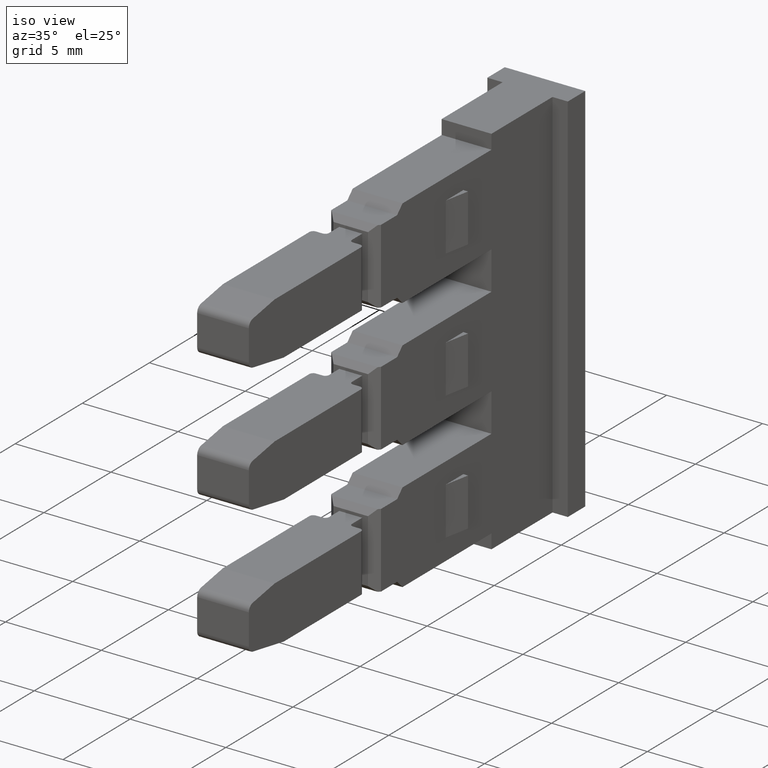
[diagram: clean part render]
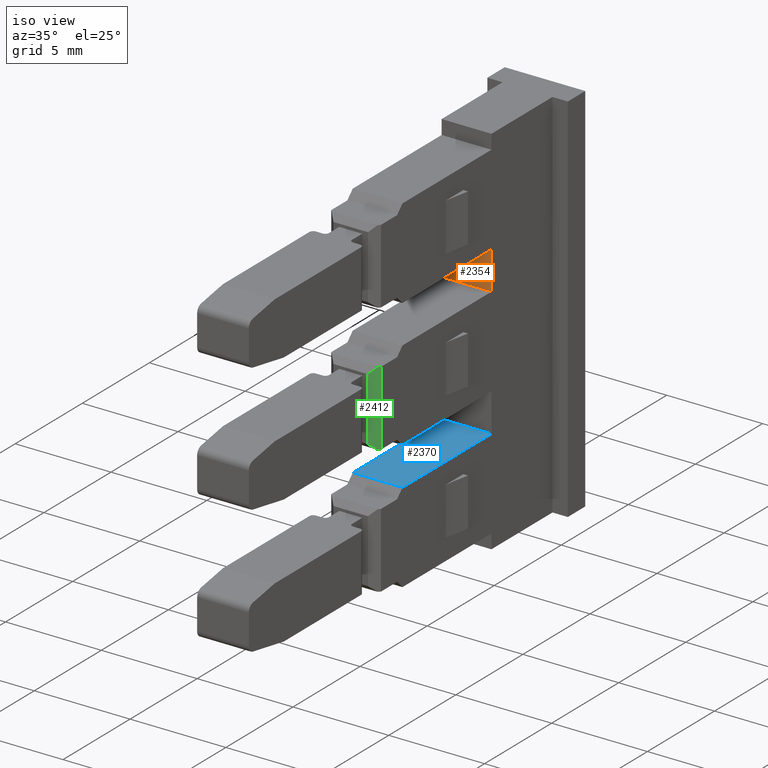
[diagram: same view with three faces highlighted in distinct colors, each labeled with its STEP entity id]
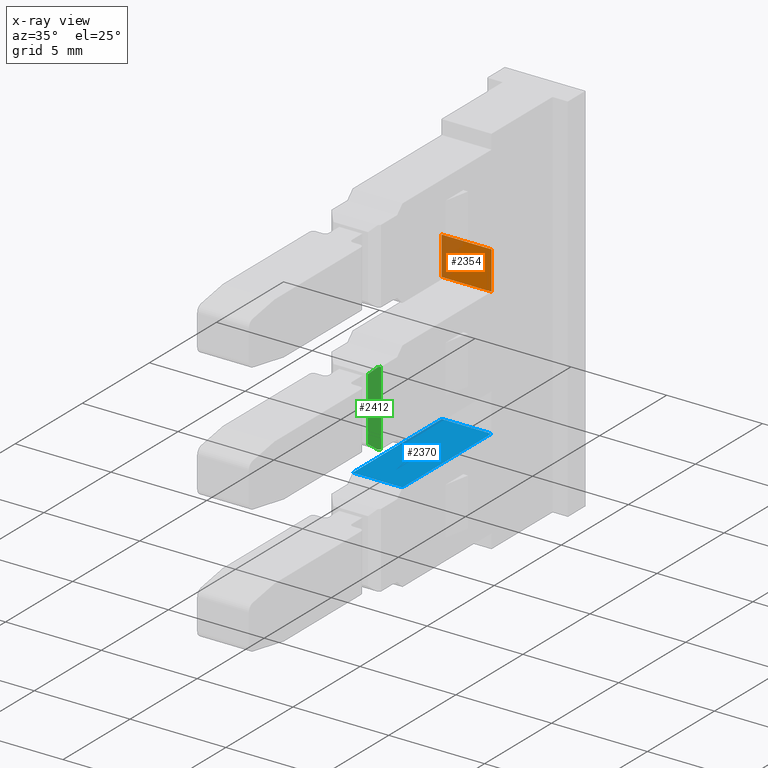
[diagram: x-ray of the same camera — body ghosted, the three highlighted faces saturated]
A machine part, iso view with three faces highlighted in distinct colors.
The next image is the same camera in x-ray (body ghosted, the three faces saturated) — at least one of them is partly hidden behind the body in this view.
Their STEP definitions:

[orange] entity #2354 — the highlighted planar face has unit normal (0, -1, 0).
#47 = EDGE_LOOP ( 'NONE', ( #399, #415, #431, #369, #362 ) ) ;
#362 = ORIENTED_EDGE ( 'NONE', *, *, #2547, .F. ) ;
#369 = ORIENTED_EDGE ( 'NONE', *, *, #2607, .T. ) ;
#399 = ORIENTED_EDGE ( 'NONE', *, *, #2534, .F. ) ;
#415 = ORIENTED_EDGE ( 'NONE', *, *, #2613, .F. ) ;
#431 = ORIENTED_EDGE ( 'NONE', *, *, #2561, .T. ) ;
#836 = VERTEX_POINT ( 'NONE', #2800 ) ;
#839 = VERTEX_POINT ( 'NONE', #2796 ) ;
#920 = AXIS2_PLACEMENT_3D ( 'NONE', #3054, #3048, #3061 ) ;
#1072 = VECTOR ( 'NONE', #1462, 1000.000000000000000 ) ;
#1085 = VECTOR ( 'NONE', #1487, 1000.000000000000100 ) ;
#1155 = VECTOR ( 'NONE', #1549, 1000.000000000000200 ) ;
#1190 = VECTOR ( 'NONE', #1671, 1000.000000000000000 ) ;
#1220 = VECTOR ( 'NONE', #1703, 1000.000000000000000 ) ;
#1446 = LINE ( 'NONE', #1467, #1072 ) ;
#1462 = DIRECTION ( 'NONE',  ( 0.9999999999550272000, 9.483965343477250900E-006, 1.387835174991279700E-015 ) ) ;
#1467 = CARTESIAN_POINT ( 'NONE',  ( 1390.832495781566600, 1072.109099257910900, 4.350000000002384400 ) ) ;
#1487 = DIRECTION ( 'NONE',  ( 0.9999999999488647900, 1.011288221278400900E-005, 1.571941303646722500E-015 ) ) ;
#1496 = LINE ( 'NONE', #1519, #1085 ) ;
#1519 = CARTESIAN_POINT ( 'NONE',  ( 1392.228829991752000, 1072.109111806373200, 4.350000000002387100 ) ) ;
#1540 = LINE ( 'NONE', #1548, #1155 ) ;
#1548 = CARTESIAN_POINT ( 'NONE',  ( 1392.082495781523900, 1072.109111112728000, 2.350000000002352000 ) ) ;
#1549 = DIRECTION ( 'NONE',  ( 0.9999999999550282000, 9.483854061118827800E-006, 0.0000000000000000000 ) ) ;
#1661 = LINE ( 'NONE', #1709, #1220 ) ;
#1671 = DIRECTION ( 'NONE',  ( -1.715374260960958300E-015, 5.266050259225974500E-014, 1.000000000000000000 ) ) ;
#1683 = CARTESIAN_POINT ( 'NONE',  ( 1390.782495781569200, 1072.109098783714900, -50.53084736897798700 ) ) ;
#1703 = DIRECTION ( 'NONE',  ( -1.714375413515915900E-015, 5.266050260173267100E-014, 1.000000000000000000 ) ) ;
#1706 = LINE ( 'NONE', #1683, #1190 ) ;
#1709 = CARTESIAN_POINT ( 'NONE',  ( 1393.382384858510700, 1072.109123440686300, 5.351675905081232400 ) ) ;
#2121 = CARTESIAN_POINT ( 'NONE',  ( 1392.228829991745700, 1072.109112500540500, 4.350000000002386200 ) ) ;
#2193 = CARTESIAN_POINT ( 'NONE',  ( 1393.382384858510700, 1072.109123440686100, 2.350000000002352000 ) ) ;
#2267 = CARTESIAN_POINT ( 'NONE',  ( 1390.782495781569000, 1072.109098783717600, 2.350000000002352000 ) ) ;
#2354 = ADVANCED_FACE ( 'NONE', ( #3057 ), #3046, .T. ) ;
#2534 = EDGE_CURVE ( 'NONE', #836, #3678, #1446, .T. ) ;
#2547 = EDGE_CURVE ( 'NONE', #3678, #839, #1496, .T. ) ;
#2561 = EDGE_CURVE ( 'NONE', #3856, #3832, #1540, .T. ) ;
#2607 = EDGE_CURVE ( 'NONE', #3832, #839, #1661, .T. ) ;
#2613 = EDGE_CURVE ( 'NONE', #3856, #836, #1706, .T. ) ;
#2796 = CARTESIAN_POINT ( 'NONE',  ( 1393.382384858510900, 1072.109123472137800, 4.350000000002388800 ) ) ;
#2800 = CARTESIAN_POINT ( 'NONE',  ( 1390.782495781569200, 1072.109098783717900, 4.350000000002387100 ) ) ;
#3046 = PLANE ( 'NONE',  #920 ) ;
#3048 = DIRECTION ( 'NONE',  ( 9.483854061118829500E-006, -0.9999999999550283100, 5.266051885825067000E-014 ) ) ;
#3054 = CARTESIAN_POINT ( 'NONE',  ( 1392.082495781523900, 1072.109111112728200, 5.351675905081229700 ) ) ;
#3057 = FACE_OUTER_BOUND ( 'NONE', #47, .T. ) ;
#3061 = DIRECTION ( 'NONE',  ( 0.9999999999550282000, 9.483854061118827800E-006, 0.0000000000000000000 ) ) ;
#3678 = VERTEX_POINT ( 'NONE', #2121 ) ;
#3832 = VERTEX_POINT ( 'NONE', #2193 ) ;
#3856 = VERTEX_POINT ( 'NONE', #2267 ) ;

[blue] entity #2370 — the highlighted planar face has unit normal (-0, -0, 1).
#28 = EDGE_LOOP ( 'NONE', ( #830, #786, #834, #818 ) ) ;
#786 = ORIENTED_EDGE ( 'NONE', *, *, #2562, .F. ) ;
#818 = ORIENTED_EDGE ( 'NONE', *, *, #2728, .T. ) ;
#822 = VERTEX_POINT ( 'NONE', #2752 ) ;
#826 = VERTEX_POINT ( 'NONE', #2788 ) ;
#830 = ORIENTED_EDGE ( 'NONE', *, *, #2568, .T. ) ;
#834 = ORIENTED_EDGE ( 'NONE', *, *, #2612, .F. ) ;
#918 = AXIS2_PLACEMENT_3D ( 'NONE', #3157, #3144, #3178 ) ;
#1123 = VECTOR ( 'NONE', #1563, 1000.000000000000200 ) ;
#1130 = VECTOR ( 'NONE', #1560, 1000.000000000000200 ) ;
#1174 = VECTOR ( 'NONE', #1694, 1000.000000000000200 ) ;
#1341 = VECTOR ( 'NONE', #2061, 1000.000000000000200 ) ;
#1493 = LINE ( 'NONE', #1553, #1130 ) ;
#1542 = LINE ( 'NONE', #1558, #1123 ) ;
#1553 = CARTESIAN_POINT ( 'NONE',  ( 1392.082495781523900, 1072.109111112725700, -4.349999999997648600 ) ) ;
#1558 = CARTESIAN_POINT ( 'NONE',  ( 1393.382396617263300, 1073.218993924945200, -4.349999999997611300 ) ) ;
#1560 = DIRECTION ( 'NONE',  ( 0.9999999999550282000, 9.483854061118827800E-006, 0.0000000000000000000 ) ) ;
#1563 = DIRECTION ( 'NONE',  ( 9.483855583750710300E-006, 0.9999999999550282000, 2.241335545524812400E-016 ) ) ;
#1680 = LINE ( 'NONE', #1698, #1174 ) ;
#1694 = DIRECTION ( 'NONE',  ( -9.483855583750710300E-006, 0.9999999999550282000, 2.241010273421988200E-016 ) ) ;
#1698 = CARTESIAN_POINT ( 'NONE',  ( 1390.782475884440100, 1074.077098783625800, -4.349999999997614900 ) ) ;
#2052 = LINE ( 'NONE', #2067, #1341 ) ;
#2061 = DIRECTION ( 'NONE',  ( 0.9999999999550282000, -9.483855532261459600E-006, 1.561398593010343100E-015 ) ) ;
#2067 = CARTESIAN_POINT ( 'NONE',  ( 1390.832557426403100, 1065.479122965623200, -4.349999999997617600 ) ) ;
#2197 = CARTESIAN_POINT ( 'NONE',  ( 1390.782495781569000, 1072.109098783715400, -4.349999999997648600 ) ) ;
#2229 = CARTESIAN_POINT ( 'NONE',  ( 1393.382384858510700, 1072.109123440683800, -4.349999999997648600 ) ) ;
#2370 = ADVANCED_FACE ( 'NONE', ( #3158 ), #3173, .T. ) ;
#2562 = EDGE_CURVE ( 'NONE', #3771, #3809, #1493, .T. ) ;
#2568 = EDGE_CURVE ( 'NONE', #822, #3809, #1542, .T. ) ;
#2612 = EDGE_CURVE ( 'NONE', #826, #3771, #1680, .T. ) ;
#2728 = EDGE_CURVE ( 'NONE', #826, #822, #2052, .T. ) ;
#2752 = CARTESIAN_POINT ( 'NONE',  ( 1393.382323213215600, 1065.479098784013100, -4.349999999997614000 ) ) ;
#2788 = CARTESIAN_POINT ( 'NONE',  ( 1390.782557426396400, 1065.479123439816000, -4.349999999997617600 ) ) ;
#3144 = DIRECTION ( 'NONE',  ( -1.714872711588220100E-015, -2.241172909574190100E-016, 1.000000000000000000 ) ) ;
#3157 = CARTESIAN_POINT ( 'NONE',  ( 1403.075361967218000, 1073.218901998261600, -4.349999999997595300 ) ) ;
#3158 = FACE_OUTER_BOUND ( 'NONE', #28, .T. ) ;
#3173 = PLANE ( 'NONE',  #918 ) ;
#3178 = DIRECTION ( 'NONE',  ( 1.000000000000000000, 0.0000000000000000000, 1.714872711588220100E-015 ) ) ;
#3771 = VERTEX_POINT ( 'NONE', #2197 ) ;
#3809 = VERTEX_POINT ( 'NONE', #2229 ) ;

[green] entity #2412 — the highlighted planar face has unit normal (0.7071, -0.7071, 0).
#71 = EDGE_LOOP ( 'NONE', ( #268, #344, #301, #234, #225, #282 ) ) ;
#225 = ORIENTED_EDGE ( 'NONE', *, *, #2512, .T. ) ;
#234 = ORIENTED_EDGE ( 'NONE', *, *, #2469, .F. ) ;
#268 = ORIENTED_EDGE ( 'NONE', *, *, #2498, .F. ) ;
#282 = ORIENTED_EDGE ( 'NONE', *, *, #2529, .T. ) ;
#301 = ORIENTED_EDGE ( 'NONE', *, *, #2464, .T. ) ;
#344 = ORIENTED_EDGE ( 'NONE', *, *, #2511, .T. ) ;
#937 = AXIS2_PLACEMENT_3D ( 'NONE', #3373, #3363, #3349 ) ;
#1001 = VECTOR ( 'NONE', #3562, 1000.000000000000100 ) ;
#1036 = VECTOR ( 'NONE', #3537, 1000.000000000000000 ) ;
#1082 = VECTOR ( 'NONE', #1396, 1000.000000000000000 ) ;
#1086 = VECTOR ( 'NONE', #1472, 1000.000000000000000 ) ;
#1100 = VECTOR ( 'NONE', #3637, 1000.000000000000000 ) ;
#1106 = VECTOR ( 'NONE', #1417, 1000.000000000000100 ) ;
#1396 = DIRECTION ( 'NONE',  ( -0.7071134872533426700, -0.7071000750561526900, -0.0000000000000000000 ) ) ;
#1400 = CARTESIAN_POINT ( 'NONE',  ( 1392.982304226570700, 1063.477102577665600, -1.650000000016648600 ) ) ;
#1408 = CARTESIAN_POINT ( 'NONE',  ( 1392.982304226553400, 1063.477102577648600, 1.950000000035586400 ) ) ;
#1417 = DIRECTION ( 'NONE',  ( 0.5773557446717412200, 0.5773447936586290100, -0.5773502691865781700 ) ) ;
#1422 = LINE ( 'NONE', #1408, #1082 ) ;
#1424 = LINE ( 'NONE', #1400, #1106 ) ;
#1453 = CARTESIAN_POINT ( 'NONE',  ( 1392.982304226553400, 1063.477102577648600, -1.950000000030507100 ) ) ;
#1455 = LINE ( 'NONE', #1453, #1086 ) ;
#1472 = DIRECTION ( 'NONE',  ( 0.7071134872533426700, 0.7071000750561526900, 0.0000000000000000000 ) ) ;
#2205 = CARTESIAN_POINT ( 'NONE',  ( 1393.282307071730000, 1063.777099732511900, -1.950000000030388100 ) ) ;
#2216 = CARTESIAN_POINT ( 'NONE',  ( 1393.382308020078900, 1063.877098784089600, -1.950000000030507100 ) ) ;
#2228 = CARTESIAN_POINT ( 'NONE',  ( 1392.982304226563900, 1063.477102577673100, -1.650000000013930100 ) ) ;
#2241 = CARTESIAN_POINT ( 'NONE',  ( 1393.282307071730000, 1063.777099732512200, 1.950000000035318100 ) ) ;
#2243 = CARTESIAN_POINT ( 'NONE',  ( 1392.982304226565700, 1063.477102577675900, 1.650000000032559400 ) ) ;
#2292 = CARTESIAN_POINT ( 'NONE',  ( 1393.382308020078900, 1063.877098784089600, 1.950000000035586400 ) ) ;
#2412 = ADVANCED_FACE ( 'NONE', ( #3361 ), #3375, .T. ) ;
#2464 = EDGE_CURVE ( 'NONE', #3791, #3831, #3508, .T. ) ;
#2469 = EDGE_CURVE ( 'NONE', #3786, #3831, #3579, .T. ) ;
#2498 = EDGE_CURVE ( 'NONE', #3845, #3818, #3649, .T. ) ;
#2511 = EDGE_CURVE ( 'NONE', #3845, #3791, #1422, .T. ) ;
#2512 = EDGE_CURVE ( 'NONE', #3786, #3792, #1424, .T. ) ;
#2529 = EDGE_CURVE ( 'NONE', #3792, #3818, #1455, .T. ) ;
#3349 = DIRECTION ( 'NONE',  ( 0.7071134872533426700, 0.7071000750561526900, 0.0000000000000000000 ) ) ;
#3361 = FACE_OUTER_BOUND ( 'NONE', #71, .T. ) ;
#3363 = DIRECTION ( 'NONE',  ( 0.7071000750561526900, -0.7071134872533426700, 3.377766508380704900E-014 ) ) ;
#3373 = CARTESIAN_POINT ( 'NONE',  ( 1392.982304226554100, 1063.477102577647900, -26.93084736897875000 ) ) ;
#3375 = PLANE ( 'NONE',  #937 ) ;
#3508 = LINE ( 'NONE', #3552, #1001 ) ;
#3537 = DIRECTION ( 'NONE',  ( 0.0000000000000000000, 0.0000000000000000000, 1.000000000000000000 ) ) ;
#3552 = CARTESIAN_POINT ( 'NONE',  ( 1393.282307071730200, 1063.777099732511700, 1.950000000035461600 ) ) ;
#3562 = DIRECTION ( 'NONE',  ( -0.5773557446795932700, -0.5773447936664811700, -0.5773502691708738400 ) ) ;
#3570 = CARTESIAN_POINT ( 'NONE',  ( 1392.982304226561400, 1063.477102577682000, 11.32909288402380800 ) ) ;
#3579 = LINE ( 'NONE', #3570, #1036 ) ;
#3637 = DIRECTION ( 'NONE',  ( 1.714438068883926900E-015, -4.605397349032980000E-014, -1.000000000000000000 ) ) ;
#3649 = LINE ( 'NONE', #3664, #1100 ) ;
#3664 = CARTESIAN_POINT ( 'NONE',  ( 1393.382308020079100, 1063.877098784087400, -50.53084736897763200 ) ) ;
#3786 = VERTEX_POINT ( 'NONE', #2228 ) ;
#3791 = VERTEX_POINT ( 'NONE', #2241 ) ;
#3792 = VERTEX_POINT ( 'NONE', #2205 ) ;
#3818 = VERTEX_POINT ( 'NONE', #2216 ) ;
#3831 = VERTEX_POINT ( 'NONE', #2243 ) ;
#3845 = VERTEX_POINT ( 'NONE', #2292 ) ;